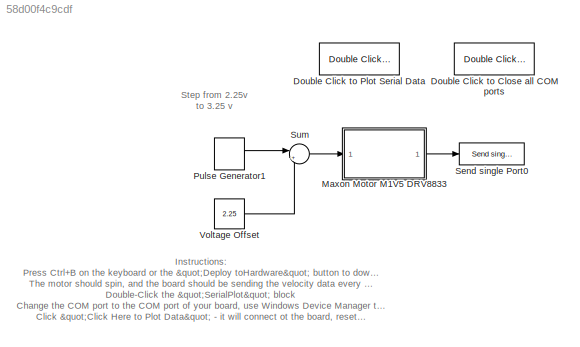
MODEL slx_58d00f4c9cdf
KIND model
CONFIG AbsTol = auto
CONFIG FixedStep = auto
CONFIG MaxStep = auto
CONFIG MinStep = auto
CONFIG RelTol = 1e-3
CONFIG SampleTimeConstraint = Unconstrained
CONFIG Solver = ode45
CONFIG SolverMode = Auto
CONFIG SolverName = ode45
CONFIG StartTime = 0.0
CONFIG StopTime = 10.0
BLOCK [Reference] Double Click to Close all COM ports  REF=RASPlib/Double Click to
Close all COM ports
  Ports = []
  SourceBlock = RASPlib/Double Click to\nClose all COM ports
BLOCK [Reference] Double Click to Plot Serial Data  REF=RASPlib/Double Click to
Plot Serial Data
  BaudRate = 9600
  COMport = 6
  DataType = single
  NumSamples = 500
  Ports = []
  SourceBlock = RASPlib/Double Click to\nPlot Serial Data
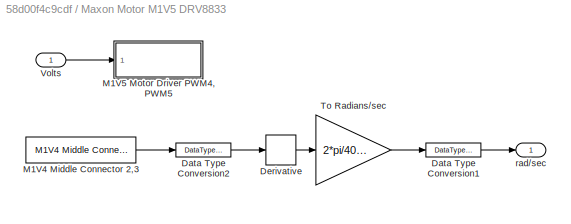
BLOCK [SubSystem] Maxon Motor M1V5 DRV8833
  Ports = [1, 1]
  RequestExecContextInheritance = off
BLOCK [DataTypeConversion] Maxon Motor M1V5 DRV8833/Data Type Conversion1
  OutDataTypeStr = single
  RndMeth = Floor
  SaturateOnIntegerOverflow = off
BLOCK [DataTypeConversion] Maxon Motor M1V5 DRV8833/Data Type Conversion2
  OutDataTypeStr = double
  RndMeth = Floor
  SaturateOnIntegerOverflow = off
BLOCK [Derivative] Maxon Motor M1V5 DRV8833/Derivative
BLOCK [Reference] Maxon Motor M1V5 DRV8833/M1V4 Middle Connector 2,3  REF=MinSegLibrary_M1V4/M1V4 Middle Connector 2,3
  Encoder = 0
  PWMFSelect = 3
  PWMTimer = -1
  PinA = 2
  PinB = 3
  Ports = [0, 1]
  SourceBlock = MinSegLibrary_M1V4/M1V4 Middle Connector 2,3
  SourceType = Encoder_arduino
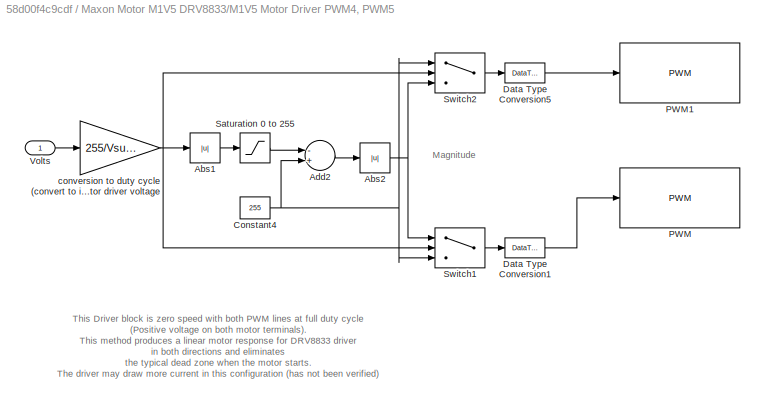
BLOCK [SubSystem] Maxon Motor M1V5 DRV8833/M1V5 Motor Driver PWM4, PWM5
  Ports = [1]
  RequestExecContextInheritance = off
BLOCK [Abs] Maxon Motor M1V5 DRV8833/M1V5 Motor Driver PWM4, PWM5/Abs1
  SaturateOnIntegerOverflow = off
BLOCK [Abs] Maxon Motor M1V5 DRV8833/M1V5 Motor Driver PWM4, PWM5/Abs2
  SaturateOnIntegerOverflow = off
BLOCK [Sum] Maxon Motor M1V5 DRV8833/M1V5 Motor Driver PWM4, PWM5/Add2
  InputSameDT = off
  Inputs = -+
  OutDataTypeStr = Inherit: Inherit via internal rule
  Ports = [2, 1]
  SaturateOnIntegerOverflow = off
BLOCK [Constant] Maxon Motor M1V5 DRV8833/M1V5 Motor Driver PWM4, PWM5/Constant4
  Value = 255
BLOCK [DataTypeConversion] Maxon Motor M1V5 DRV8833/M1V5 Motor Driver PWM4, PWM5/Data Type Conversion1
  OutDataTypeStr = uint8
  RndMeth = Floor
  SaturateOnIntegerOverflow = off
BLOCK [DataTypeConversion] Maxon Motor M1V5 DRV8833/M1V5 Motor Driver PWM4, PWM5/Data Type Conversion5
  OutDataTypeStr = uint8
  RndMeth = Floor
  SaturateOnIntegerOverflow = off
BLOCK [Reference] Maxon Motor M1V5 DRV8833/M1V5 Motor Driver PWM4, PWM5/PWM  REF=arduinolib/PWM
  Ports = [1]
  SourceBlock = arduinolib/PWM
  SourceType = Arduino PWM
  blockPlatform = arduino
  pinNumber = 4
BLOCK [Reference] Maxon Motor M1V5 DRV8833/M1V5 Motor Driver PWM4, PWM5/PWM1  REF=arduinolib/PWM
  Ports = [1]
  SourceBlock = arduinolib/PWM
  SourceType = Arduino PWM
  blockPlatform = arduino
  pinNumber = 5
BLOCK [Saturate] Maxon Motor M1V5 DRV8833/M1V5 Motor Driver PWM4, PWM5/Saturation 0 to 255
  InputPortMap = u0
  LowerLimit = 0
  Ports = [1, 1]
  UpperLimit = 255
BLOCK [Switch] Maxon Motor M1V5 DRV8833/M1V5 Motor Driver PWM4, PWM5/Switch1
  InputSameDT = off
  SaturateOnIntegerOverflow = off
BLOCK [Switch] Maxon Motor M1V5 DRV8833/M1V5 Motor Driver PWM4, PWM5/Switch2
  InputSameDT = off
  SaturateOnIntegerOverflow = off
BLOCK [Inport] Maxon Motor M1V5 DRV8833/M1V5 Motor Driver PWM4, PWM5/Volts
  IconDisplay = Port number
BLOCK [Gain] Maxon Motor M1V5 DRV8833/M1V5 Motor Driver PWM4, PWM5/conversion to duty cycle (convert to int) denominator is motor driver voltage
  Gain = 255/Vsupply
  OutDataTypeStr = int16
  ParamDataTypeStr = Inherit: Inherit via internal rule
  SaturateOnIntegerOverflow = off
BLOCK [Gain] Maxon Motor M1V5 DRV8833/To Radians//sec
  Gain = 2*pi/4096
  OutDataTypeStr = Inherit: Inherit via internal rule
  ParamDataTypeStr = Inherit: Inherit via internal rule
  SaturateOnIntegerOverflow = off
BLOCK [Inport] Maxon Motor M1V5 DRV8833/Volts
  IconDisplay = Port number
BLOCK [Outport] Maxon Motor M1V5 DRV8833/rad//sec
  IconDisplay = Port number
BLOCK [DiscretePulseGenerator] Pulse Generator1
  Period = 8
  Ports = [0, 1]
  PulseType = Time based
  PulseWidth = 50
BLOCK [Reference] Send single Port0  REF=RASPlib/Send single Port0
  Ports = [1]
  SourceBlock = RASPlib/Send single Port0
  SourceType = SubSystem
BLOCK [Sum] Sum
  IconShape = round
  InputSameDT = off
  Inputs = |++
  OutDataTypeStr = Inherit: Inherit via internal rule
  Ports = [2, 1]
  SaturateOnIntegerOverflow = off
BLOCK [Constant] Voltage Offset
  Value = 2.25
ANNOTATION (root): Instructions : Press Ctrl+B on the keyboard or the "Deploy toHardware" button to download the code The motor should spin, and the board should be sending the velocity data every 5 milliseconds Double-Click the "SerialPlot" block Change the COM port to the COM port of your board, use Windows Device Manager to find the COM port Click "Click Here to Plot Data" - it will connect ot the board, reset it...<+587ch>
ANNOTATION (root): Step from 2.25v to 3.25 v
ANNOTATION Maxon Motor M1V5 DRV8833/M1V5 Motor Driver PWM4, PWM5: Magnitude
ANNOTATION Maxon Motor M1V5 DRV8833/M1V5 Motor Driver PWM4, PWM5: This Driver block is zero speed with both PWM lines at full duty cycle (Positive voltage on both motor terminals). This method produces a linear motor response for DRV8833 driver in both directions and eliminates the typical dead zone when the motor starts. The driver may draw more current in this configuration (has not been verified) The SN754410 driver this has no effect, so the driver could alt...<+76ch>
LINE Maxon Motor M1V5 DRV8833/Data Type Conversion1:1 -> Maxon Motor M1V5 DRV8833/rad//sec:1
LINE Maxon Motor M1V5 DRV8833/Data Type Conversion2:1 -> Maxon Motor M1V5 DRV8833/Derivative:1
LINE Maxon Motor M1V5 DRV8833/Derivative:1 -> Maxon Motor M1V5 DRV8833/To Radians//sec:1
LINE Maxon Motor M1V5 DRV8833/M1V4 Middle Connector 2,3:1 -> Maxon Motor M1V5 DRV8833/Data Type Conversion2:1
LINE Maxon Motor M1V5 DRV8833/M1V5 Motor Driver PWM4, PWM5/Abs1:1 -> Maxon Motor M1V5 DRV8833/M1V5 Motor Driver PWM4, PWM5/Saturation 0 to 255:1
NET Maxon Motor M1V5 DRV8833/M1V5 Motor Driver PWM4, PWM5/Abs2:1 -> Maxon Motor M1V5 DRV8833/M1V5 Motor Driver PWM4, PWM5/Switch1:1, Maxon Motor M1V5 DRV8833/M1V5 Motor Driver PWM4, PWM5/Switch2:3
LINE Maxon Motor M1V5 DRV8833/M1V5 Motor Driver PWM4, PWM5/Add2:1 -> Maxon Motor M1V5 DRV8833/M1V5 Motor Driver PWM4, PWM5/Abs2:1
NET Maxon Motor M1V5 DRV8833/M1V5 Motor Driver PWM4, PWM5/Constant4:1 -> Maxon Motor M1V5 DRV8833/M1V5 Motor Driver PWM4, PWM5/Add2:2, Maxon Motor M1V5 DRV8833/M1V5 Motor Driver PWM4, PWM5/Switch1:3, Maxon Motor M1V5 DRV8833/M1V5 Motor Driver PWM4, PWM5/Switch2:1
LINE Maxon Motor M1V5 DRV8833/M1V5 Motor Driver PWM4, PWM5/Data Type Conversion1:1 -> Maxon Motor M1V5 DRV8833/M1V5 Motor Driver PWM4, PWM5/PWM:1
LINE Maxon Motor M1V5 DRV8833/M1V5 Motor Driver PWM4, PWM5/Data Type Conversion5:1 -> Maxon Motor M1V5 DRV8833/M1V5 Motor Driver PWM4, PWM5/PWM1:1
LINE Maxon Motor M1V5 DRV8833/M1V5 Motor Driver PWM4, PWM5/Saturation 0 to 255:1 -> Maxon Motor M1V5 DRV8833/M1V5 Motor Driver PWM4, PWM5/Add2:1
LINE Maxon Motor M1V5 DRV8833/M1V5 Motor Driver PWM4, PWM5/Switch1:1 -> Maxon Motor M1V5 DRV8833/M1V5 Motor Driver PWM4, PWM5/Data Type Conversion1:1
LINE Maxon Motor M1V5 DRV8833/M1V5 Motor Driver PWM4, PWM5/Switch2:1 -> Maxon Motor M1V5 DRV8833/M1V5 Motor Driver PWM4, PWM5/Data Type Conversion5:1
LINE Maxon Motor M1V5 DRV8833/M1V5 Motor Driver PWM4, PWM5/Volts:1 -> Maxon Motor M1V5 DRV8833/M1V5 Motor Driver PWM4, PWM5/conversion to duty cycle (convert to int) denominator is motor driver voltage:1
NET Maxon Motor M1V5 DRV8833/M1V5 Motor Driver PWM4, PWM5/conversion to duty cycle (convert to int) denominator is motor driver voltage:1 -> Maxon Motor M1V5 DRV8833/M1V5 Motor Driver PWM4, PWM5/Abs1:1, Maxon Motor M1V5 DRV8833/M1V5 Motor Driver PWM4, PWM5/Switch1:2, Maxon Motor M1V5 DRV8833/M1V5 Motor Driver PWM4, PWM5/Switch2:2
LINE Maxon Motor M1V5 DRV8833/To Radians//sec:1 -> Maxon Motor M1V5 DRV8833/Data Type Conversion1:1
LINE Maxon Motor M1V5 DRV8833/Volts:1 -> Maxon Motor M1V5 DRV8833/M1V5 Motor Driver PWM4, PWM5:1
LINE Maxon Motor M1V5 DRV8833:1 -> Send single Port0:1
LINE Pulse Generator1:1 -> Sum:1
LINE Sum:1 -> Maxon Motor M1V5 DRV8833:1
LINE Voltage Offset:1 -> Sum:2
note: NET lines group one-source signal fan-out (src -> all destinations, sorted); 1:1 wires keep LINE
